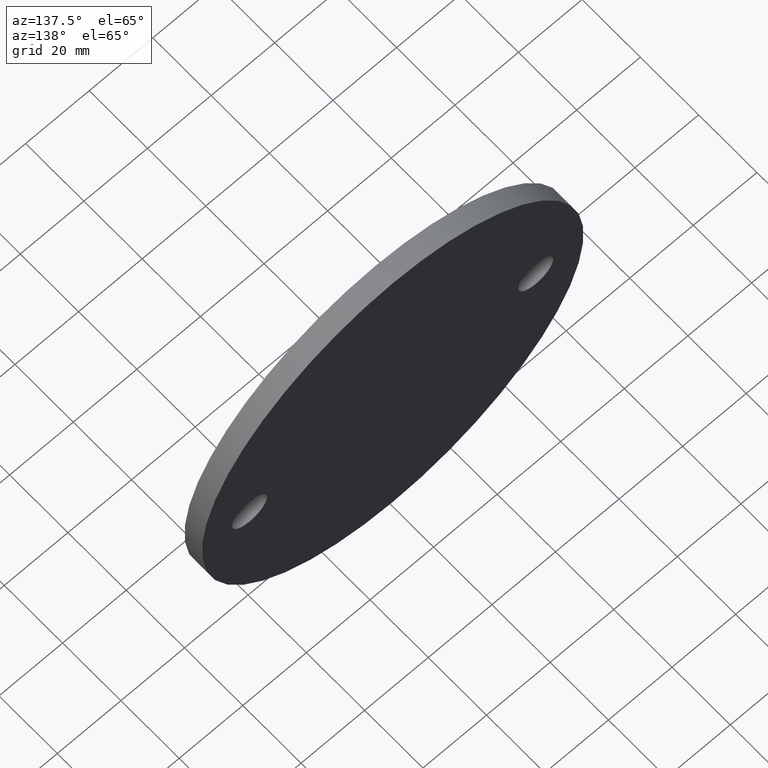
[diagram: clean part render]
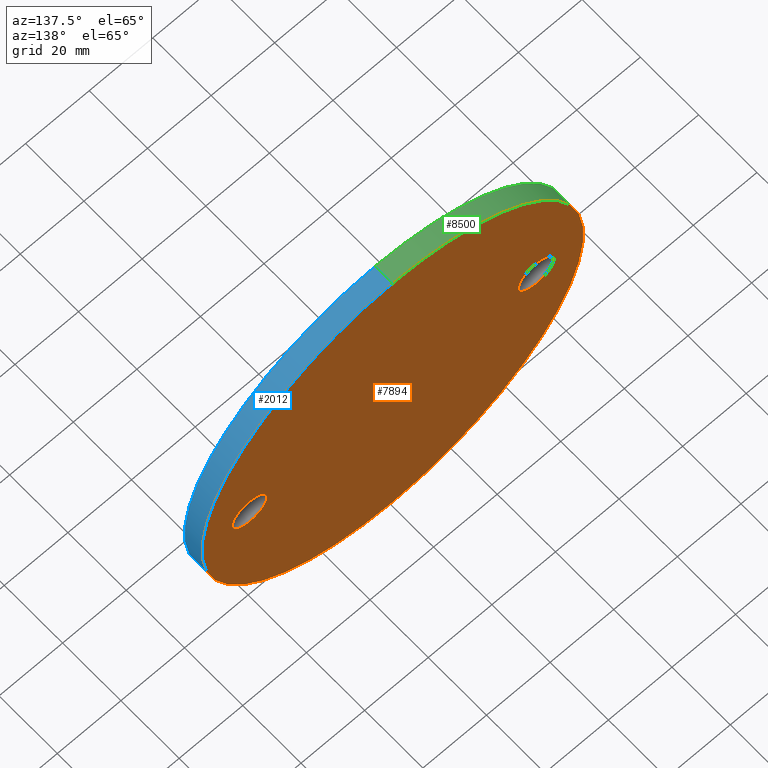
[diagram: same view with three faces highlighted in distinct colors, each labeled with its STEP entity id]
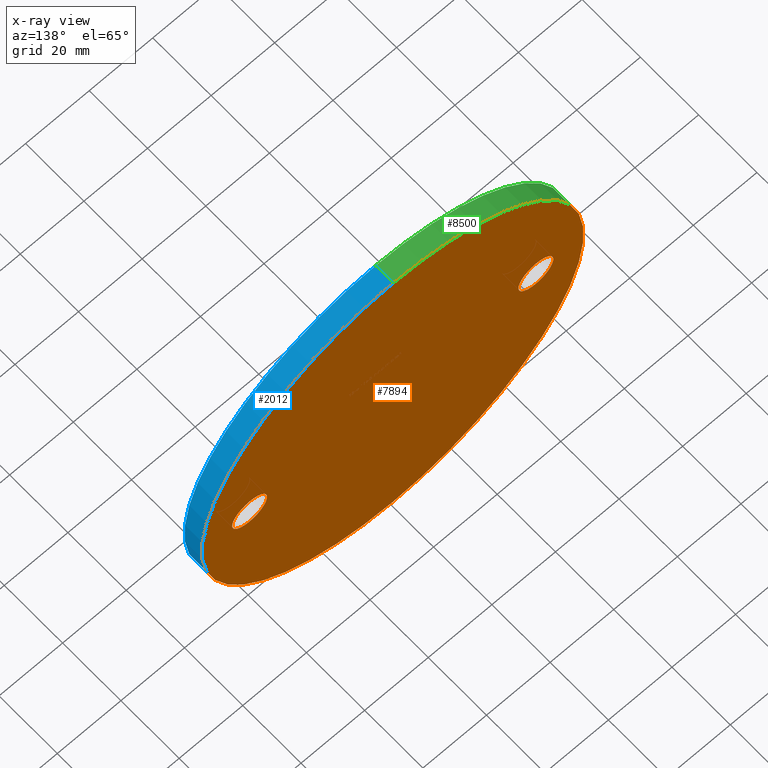
[diagram: x-ray of the same camera — body ghosted, the three highlighted faces saturated]
A machine part, auxiliary view with three faces highlighted in distinct colors.
The next image is the same camera in x-ray (body ghosted, the three faces saturated) — at least one of them is partly hidden behind the body in this view.
Their STEP definitions:

[orange] entity #7894 — the highlighted planar face has unit normal (0, 1, 0).
#123 = EDGE_CURVE ( 'NONE', #5586, #3239, #6916, .T. ) ;
#247 = DIRECTION ( 'NONE',  ( 0.0000000000000000000, 0.0000000000000000000, 1.000000000000000000 ) ) ;
#256 = AXIS2_PLACEMENT_3D ( 'NONE', #10147, #2912, #9331 ) ;
#568 = DIRECTION ( 'NONE',  ( 0.0000000000000000000, 1.000000000000000000, 0.0000000000000000000 ) ) ;
#798 = FACE_BOUND ( 'NONE', #9146, .T. ) ;
#807 = AXIS2_PLACEMENT_3D ( 'NONE', #2736, #4376, #247 ) ;
#1020 = EDGE_CURVE ( 'NONE', #1795, #1373, #7814, .T. ) ;
#1373 = VERTEX_POINT ( 'NONE', #3019 ) ;
#1500 = CARTESIAN_POINT ( 'NONE',  ( 0.0000000000000000000, 6.000000000000000000, -60.00000000000000000 ) ) ;
#1639 = CARTESIAN_POINT ( 'NONE',  ( 0.0000000000000000000, 6.000000000000000000, 0.0000000000000000000 ) ) ;
#1795 = VERTEX_POINT ( 'NONE', #5516 ) ;
#1824 = EDGE_LOOP ( 'NONE', ( #2857, #2366 ) ) ;
#2211 = DIRECTION ( 'NONE',  ( 0.0000000000000000000, 0.0000000000000000000, 1.000000000000000000 ) ) ;
#2366 = ORIENTED_EDGE ( 'NONE', *, *, #9401, .F. ) ;
#2449 = AXIS2_PLACEMENT_3D ( 'NONE', #8990, #8923, #8195 ) ;
#2572 = DIRECTION ( 'NONE',  ( 0.0000000000000000000, 1.000000000000000000, 0.0000000000000000000 ) ) ;
#2736 = CARTESIAN_POINT ( 'NONE',  ( 45.00000000000000000, 6.000000000000000000, -1.102182119232617900E-014 ) ) ;
#2857 = ORIENTED_EDGE ( 'NONE', *, *, #123, .F. ) ;
#2912 = DIRECTION ( 'NONE',  ( 0.0000000000000000000, 1.000000000000000000, 0.0000000000000000000 ) ) ;
#3019 = CARTESIAN_POINT ( 'NONE',  ( -45.00000000000000000, 6.000000000000000000, 5.499999999999996400 ) ) ;
#3156 = VERTEX_POINT ( 'NONE', #1500 ) ;
#3239 = VERTEX_POINT ( 'NONE', #4744 ) ;
#3605 = FACE_BOUND ( 'NONE', #1824, .T. ) ;
#3842 = ORIENTED_EDGE ( 'NONE', *, *, #1020, .F. ) ;
#4056 = PLANE ( 'NONE',  #2449 ) ;
#4124 = DIRECTION ( 'NONE',  ( 0.0000000000000000000, 0.0000000000000000000, 1.000000000000000000 ) ) ;
#4315 = EDGE_CURVE ( 'NONE', #5578, #3156, #9052, .T. ) ;
#4376 = DIRECTION ( 'NONE',  ( 0.0000000000000000000, 1.000000000000000000, 0.0000000000000000000 ) ) ;
#4744 = CARTESIAN_POINT ( 'NONE',  ( 45.00000000000000000, 6.000000000000000000, -5.500000000000007100 ) ) ;
#4819 = CIRCLE ( 'NONE', #807, 5.499999999999996400 ) ;
#5338 = EDGE_CURVE ( 'NONE', #3156, #5578, #6875, .T. ) ;
#5398 = DIRECTION ( 'NONE',  ( 0.0000000000000000000, 1.000000000000000000, 0.0000000000000000000 ) ) ;
#5402 = CARTESIAN_POINT ( 'NONE',  ( -45.00000000000000000, 6.000000000000000000, 0.0000000000000000000 ) ) ;
#5516 = CARTESIAN_POINT ( 'NONE',  ( -45.00000000000000000, 6.000000000000000000, -5.499999999999996400 ) ) ;
#5578 = VERTEX_POINT ( 'NONE', #10419 ) ;
#5586 = VERTEX_POINT ( 'NONE', #8816 ) ;
#5663 = CARTESIAN_POINT ( 'NONE',  ( 45.00000000000000000, 6.000000000000000000, -1.102182119232617900E-014 ) ) ;
#6241 = CARTESIAN_POINT ( 'NONE',  ( -45.00000000000000000, 6.000000000000000000, 0.0000000000000000000 ) ) ;
#6460 = ORIENTED_EDGE ( 'NONE', *, *, #4315, .T. ) ;
#6875 = CIRCLE ( 'NONE', #9464, 60.00000000000000000 ) ;
#6916 = CIRCLE ( 'NONE', #7253, 5.499999999999996400 ) ;
#7079 = DIRECTION ( 'NONE',  ( 0.0000000000000000000, 0.0000000000000000000, 1.000000000000000000 ) ) ;
#7195 = AXIS2_PLACEMENT_3D ( 'NONE', #6241, #5398, #7079 ) ;
#7253 = AXIS2_PLACEMENT_3D ( 'NONE', #5663, #2572, #4124 ) ;
#7324 = CIRCLE ( 'NONE', #9230, 5.499999999999996400 ) ;
#7347 = ORIENTED_EDGE ( 'NONE', *, *, #5338, .T. ) ;
#7387 = DIRECTION ( 'NONE',  ( 0.0000000000000000000, 1.000000000000000000, 0.0000000000000000000 ) ) ;
#7814 = CIRCLE ( 'NONE', #7195, 5.499999999999996400 ) ;
#7894 = ADVANCED_FACE ( 'NONE', ( #3605, #798, #10397 ), #4056, .T. ) ;
#8195 = DIRECTION ( 'NONE',  ( 0.0000000000000000000, -0.0000000000000000000, 1.000000000000000000 ) ) ;
#8261 = ORIENTED_EDGE ( 'NONE', *, *, #10326, .F. ) ;
#8816 = CARTESIAN_POINT ( 'NONE',  ( 45.00000000000000000, 6.000000000000000000, 5.499999999999984900 ) ) ;
#8923 = DIRECTION ( 'NONE',  ( 0.0000000000000000000, 1.000000000000000000, 0.0000000000000000000 ) ) ;
#8990 = CARTESIAN_POINT ( 'NONE',  ( 0.0000000000000000000, 6.000000000000000000, 0.0000000000000000000 ) ) ;
#9052 = CIRCLE ( 'NONE', #256, 60.00000000000000000 ) ;
#9146 = EDGE_LOOP ( 'NONE', ( #8261, #3842 ) ) ;
#9230 = AXIS2_PLACEMENT_3D ( 'NONE', #5402, #568, #2211 ) ;
#9293 = EDGE_LOOP ( 'NONE', ( #7347, #6460 ) ) ;
#9331 = DIRECTION ( 'NONE',  ( 0.0000000000000000000, 0.0000000000000000000, 1.000000000000000000 ) ) ;
#9401 = EDGE_CURVE ( 'NONE', #3239, #5586, #4819, .T. ) ;
#9464 = AXIS2_PLACEMENT_3D ( 'NONE', #1639, #7387, #9701 ) ;
#9701 = DIRECTION ( 'NONE',  ( 0.0000000000000000000, 0.0000000000000000000, 1.000000000000000000 ) ) ;
#10147 = CARTESIAN_POINT ( 'NONE',  ( 0.0000000000000000000, 6.000000000000000000, 0.0000000000000000000 ) ) ;
#10326 = EDGE_CURVE ( 'NONE', #1373, #1795, #7324, .T. ) ;
#10397 = FACE_OUTER_BOUND ( 'NONE', #9293, .T. ) ;
#10419 = CARTESIAN_POINT ( 'NONE',  ( 7.347880794884118400E-015, 6.000000000000000000, 60.00000000000000000 ) ) ;

[blue] entity #2012 — the highlighted cylindrical surface (partial cylindrical patch) has radius 60 mm, axis along (-0, -1, -0).
#256 = AXIS2_PLACEMENT_3D ( 'NONE', #10147, #2912, #9331 ) ;
#460 = CARTESIAN_POINT ( 'NONE',  ( 7.347880794884118400E-015, 0.0000000000000000000, 60.00000000000000000 ) ) ;
#684 = VECTOR ( 'NONE', #2760, 1000.000000000000000 ) ;
#855 = LINE ( 'NONE', #2831, #4282 ) ;
#1500 = CARTESIAN_POINT ( 'NONE',  ( 0.0000000000000000000, 6.000000000000000000, -60.00000000000000000 ) ) ;
#1724 = CIRCLE ( 'NONE', #6596, 60.00000000000000000 ) ;
#2012 = ADVANCED_FACE ( 'NONE', ( #3792 ), #5268, .T. ) ;
#2262 = EDGE_CURVE ( 'NONE', #3156, #10155, #855, .T. ) ;
#2663 = DIRECTION ( 'NONE',  ( 0.0000000000000000000, 0.0000000000000000000, -1.000000000000000000 ) ) ;
#2760 = DIRECTION ( 'NONE',  ( -0.0000000000000000000, -1.000000000000000000, -0.0000000000000000000 ) ) ;
#2831 = CARTESIAN_POINT ( 'NONE',  ( 0.0000000000000000000, 6.000000000000000000, -60.00000000000000000 ) ) ;
#2866 = CARTESIAN_POINT ( 'NONE',  ( 0.0000000000000000000, 0.0000000000000000000, 0.0000000000000000000 ) ) ;
#2912 = DIRECTION ( 'NONE',  ( 0.0000000000000000000, 1.000000000000000000, 0.0000000000000000000 ) ) ;
#3114 = EDGE_CURVE ( 'NONE', #4605, #10155, #1724, .T. ) ;
#3156 = VERTEX_POINT ( 'NONE', #1500 ) ;
#3446 = AXIS2_PLACEMENT_3D ( 'NONE', #8349, #7495, #2663 ) ;
#3792 = FACE_OUTER_BOUND ( 'NONE', #8942, .T. ) ;
#4282 = VECTOR ( 'NONE', #6781, 1000.000000000000000 ) ;
#4315 = EDGE_CURVE ( 'NONE', #5578, #3156, #9052, .T. ) ;
#4605 = VERTEX_POINT ( 'NONE', #460 ) ;
#5268 = CYLINDRICAL_SURFACE ( 'NONE', #3446, 60.00000000000000000 ) ;
#5330 = DIRECTION ( 'NONE',  ( 0.0000000000000000000, 1.000000000000000000, 0.0000000000000000000 ) ) ;
#5578 = VERTEX_POINT ( 'NONE', #10419 ) ;
#6445 = CARTESIAN_POINT ( 'NONE',  ( 0.0000000000000000000, 0.0000000000000000000, -60.00000000000000000 ) ) ;
#6572 = CARTESIAN_POINT ( 'NONE',  ( 7.347880794884118400E-015, 6.000000000000000000, 60.00000000000000000 ) ) ;
#6596 = AXIS2_PLACEMENT_3D ( 'NONE', #2866, #5330, #6947 ) ;
#6649 = ORIENTED_EDGE ( 'NONE', *, *, #3114, .T. ) ;
#6781 = DIRECTION ( 'NONE',  ( -0.0000000000000000000, -1.000000000000000000, -0.0000000000000000000 ) ) ;
#6947 = DIRECTION ( 'NONE',  ( 0.0000000000000000000, 0.0000000000000000000, 1.000000000000000000 ) ) ;
#7164 = ORIENTED_EDGE ( 'NONE', *, *, #4315, .F. ) ;
#7221 = EDGE_CURVE ( 'NONE', #5578, #4605, #7234, .T. ) ;
#7234 = LINE ( 'NONE', #6572, #684 ) ;
#7495 = DIRECTION ( 'NONE',  ( -0.0000000000000000000, -1.000000000000000000, -0.0000000000000000000 ) ) ;
#8349 = CARTESIAN_POINT ( 'NONE',  ( 0.0000000000000000000, 6.000000000000000000, 0.0000000000000000000 ) ) ;
#8567 = ORIENTED_EDGE ( 'NONE', *, *, #7221, .T. ) ;
#8942 = EDGE_LOOP ( 'NONE', ( #7164, #8567, #6649, #10012 ) ) ;
#9052 = CIRCLE ( 'NONE', #256, 60.00000000000000000 ) ;
#9331 = DIRECTION ( 'NONE',  ( 0.0000000000000000000, 0.0000000000000000000, 1.000000000000000000 ) ) ;
#10012 = ORIENTED_EDGE ( 'NONE', *, *, #2262, .F. ) ;
#10147 = CARTESIAN_POINT ( 'NONE',  ( 0.0000000000000000000, 6.000000000000000000, 0.0000000000000000000 ) ) ;
#10155 = VERTEX_POINT ( 'NONE', #6445 ) ;
#10419 = CARTESIAN_POINT ( 'NONE',  ( 7.347880794884118400E-015, 6.000000000000000000, 60.00000000000000000 ) ) ;

[green] entity #8500 — the highlighted cylindrical surface (partial cylindrical patch) has radius 60 mm, axis along (-0, -1, -0).
#388 = AXIS2_PLACEMENT_3D ( 'NONE', #2088, #10159, #10190 ) ;
#460 = CARTESIAN_POINT ( 'NONE',  ( 7.347880794884118400E-015, 0.0000000000000000000, 60.00000000000000000 ) ) ;
#680 = ORIENTED_EDGE ( 'NONE', *, *, #2262, .T. ) ;
#684 = VECTOR ( 'NONE', #2760, 1000.000000000000000 ) ;
#855 = LINE ( 'NONE', #2831, #4282 ) ;
#989 = DIRECTION ( 'NONE',  ( -0.0000000000000000000, -1.000000000000000000, -0.0000000000000000000 ) ) ;
#1500 = CARTESIAN_POINT ( 'NONE',  ( 0.0000000000000000000, 6.000000000000000000, -60.00000000000000000 ) ) ;
#1589 = ORIENTED_EDGE ( 'NONE', *, *, #4649, .T. ) ;
#1639 = CARTESIAN_POINT ( 'NONE',  ( 0.0000000000000000000, 6.000000000000000000, 0.0000000000000000000 ) ) ;
#2088 = CARTESIAN_POINT ( 'NONE',  ( 0.0000000000000000000, 0.0000000000000000000, 0.0000000000000000000 ) ) ;
#2262 = EDGE_CURVE ( 'NONE', #3156, #10155, #855, .T. ) ;
#2760 = DIRECTION ( 'NONE',  ( -0.0000000000000000000, -1.000000000000000000, -0.0000000000000000000 ) ) ;
#2831 = CARTESIAN_POINT ( 'NONE',  ( 0.0000000000000000000, 6.000000000000000000, -60.00000000000000000 ) ) ;
#3156 = VERTEX_POINT ( 'NONE', #1500 ) ;
#3402 = CARTESIAN_POINT ( 'NONE',  ( 0.0000000000000000000, 6.000000000000000000, 0.0000000000000000000 ) ) ;
#4247 = CIRCLE ( 'NONE', #388, 60.00000000000000000 ) ;
#4282 = VECTOR ( 'NONE', #6781, 1000.000000000000000 ) ;
#4605 = VERTEX_POINT ( 'NONE', #460 ) ;
#4649 = EDGE_CURVE ( 'NONE', #10155, #4605, #4247, .T. ) ;
#4954 = CYLINDRICAL_SURFACE ( 'NONE', #5856, 60.00000000000000000 ) ;
#5338 = EDGE_CURVE ( 'NONE', #3156, #5578, #6875, .T. ) ;
#5578 = VERTEX_POINT ( 'NONE', #10419 ) ;
#5637 = DIRECTION ( 'NONE',  ( 0.0000000000000000000, 0.0000000000000000000, -1.000000000000000000 ) ) ;
#5856 = AXIS2_PLACEMENT_3D ( 'NONE', #3402, #989, #5637 ) ;
#6220 = EDGE_LOOP ( 'NONE', ( #7883, #6477, #680, #1589 ) ) ;
#6445 = CARTESIAN_POINT ( 'NONE',  ( 0.0000000000000000000, 0.0000000000000000000, -60.00000000000000000 ) ) ;
#6477 = ORIENTED_EDGE ( 'NONE', *, *, #5338, .F. ) ;
#6572 = CARTESIAN_POINT ( 'NONE',  ( 7.347880794884118400E-015, 6.000000000000000000, 60.00000000000000000 ) ) ;
#6726 = FACE_OUTER_BOUND ( 'NONE', #6220, .T. ) ;
#6781 = DIRECTION ( 'NONE',  ( -0.0000000000000000000, -1.000000000000000000, -0.0000000000000000000 ) ) ;
#6875 = CIRCLE ( 'NONE', #9464, 60.00000000000000000 ) ;
#7221 = EDGE_CURVE ( 'NONE', #5578, #4605, #7234, .T. ) ;
#7234 = LINE ( 'NONE', #6572, #684 ) ;
#7387 = DIRECTION ( 'NONE',  ( 0.0000000000000000000, 1.000000000000000000, 0.0000000000000000000 ) ) ;
#7883 = ORIENTED_EDGE ( 'NONE', *, *, #7221, .F. ) ;
#8500 = ADVANCED_FACE ( 'NONE', ( #6726 ), #4954, .T. ) ;
#9464 = AXIS2_PLACEMENT_3D ( 'NONE', #1639, #7387, #9701 ) ;
#9701 = DIRECTION ( 'NONE',  ( 0.0000000000000000000, 0.0000000000000000000, 1.000000000000000000 ) ) ;
#10155 = VERTEX_POINT ( 'NONE', #6445 ) ;
#10159 = DIRECTION ( 'NONE',  ( 0.0000000000000000000, 1.000000000000000000, 0.0000000000000000000 ) ) ;
#10190 = DIRECTION ( 'NONE',  ( 0.0000000000000000000, 0.0000000000000000000, 1.000000000000000000 ) ) ;
#10419 = CARTESIAN_POINT ( 'NONE',  ( 7.347880794884118400E-015, 6.000000000000000000, 60.00000000000000000 ) ) ;